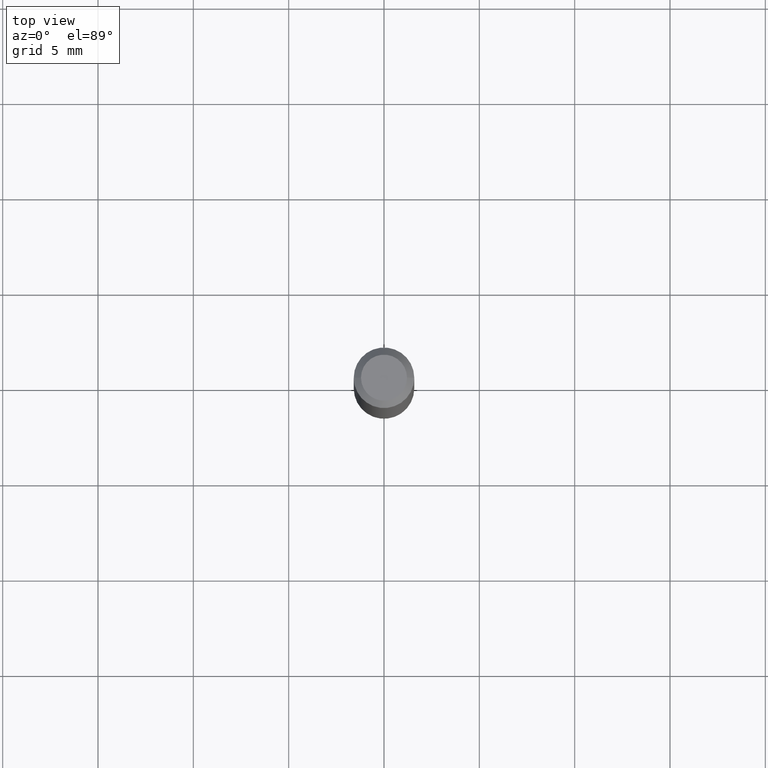
[diagram: clean part render]
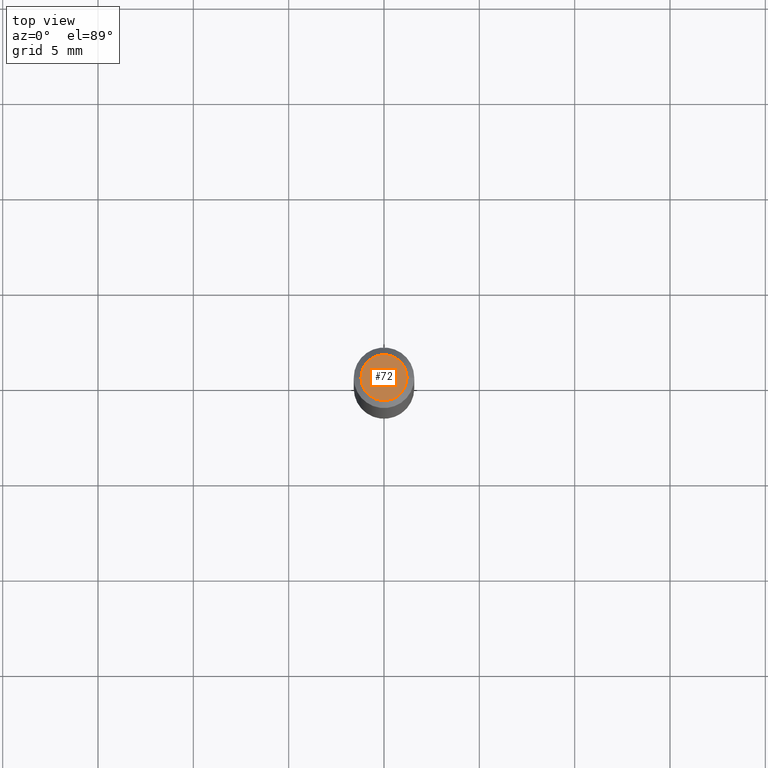
[diagram: same view with one face highlighted and labeled with its STEP entity id]
A machine part, top view. The second image highlights one B-rep face of the part: STEP entity #72.
In plain terms, the highlighted planar face has unit normal (0, -0, -1).
Its self-contained STEP definition (entity closure, byte-faithful):
#37 = EDGE_CURVE ( 'NONE', #315, #357, #295, .T. ) ;
#44 = DIRECTION ( 'NONE',  ( 1.000000000000000000, -6.982962677686267499E-15, 4.852736867747366768E-29 ) ) ;
#56 = ORIENTED_EDGE ( 'NONE', *, *, #328, .T. ) ;
#57 = DIRECTION ( 'NONE',  ( -1.000000000000000000, 6.982962677686265922E-15, -4.876176775795935793E-29 ) ) ;
#64 = ORIENTED_EDGE ( 'NONE', *, *, #37, .T. ) ;
#72 = ADVANCED_FACE ( 'NONE', ( #228 ), #198, .F. ) ;
#139 = AXIS2_PLACEMENT_3D ( 'NONE', #259, #441, #57 ) ;
#188 = CARTESIAN_POINT ( 'NONE',  ( -0.04749999999999999362, 3.578768372314200645E-16, -5.645421759935625219E-16 ) ) ;
#192 = CARTESIAN_POINT ( 'NONE',  ( 1.380570281168130538E-44, -1.971088472471417818E-30, -5.645421759935600567E-16 ) ) ;
#198 = PLANE ( 'NONE',  #139 ) ;
#222 = AXIS2_PLACEMENT_3D ( 'NONE', #399, #369, #44 ) ;
#228 = FACE_OUTER_BOUND ( 'NONE', #344, .T. ) ;
#231 = DIRECTION ( 'NONE',  ( -2.445468806185136597E-29, 3.491481338843145583E-15, 1.000000000000000000 ) ) ;
#256 = CARTESIAN_POINT ( 'NONE',  ( 0.04749999999999999362, -4.035134999187588484E-16, -5.645421759935574929E-16 ) ) ;
#259 = CARTESIAN_POINT ( 'NONE',  ( 3.316907271900976096E-16, 0.04749999999999999362, -4.481164515918294248E-16 ) ) ;
#295 = CIRCLE ( 'NONE', #367, 0.04749999999999999362 ) ;
#315 = VERTEX_POINT ( 'NONE', #188 ) ;
#328 = EDGE_CURVE ( 'NONE', #357, #315, #376, .T. ) ;
#344 = EDGE_LOOP ( 'NONE', ( #64, #56 ) ) ;
#357 = VERTEX_POINT ( 'NONE', #256 ) ;
#367 = AXIS2_PLACEMENT_3D ( 'NONE', #192, #231, #381 ) ;
#369 = DIRECTION ( 'NONE',  ( -2.445468806185136597E-29, 3.491481338843145583E-15, 1.000000000000000000 ) ) ;
#376 = CIRCLE ( 'NONE', #222, 0.04749999999999999362 ) ;
#381 = DIRECTION ( 'NONE',  ( 1.000000000000000000, -6.982962677686267499E-15, 4.852736867747366768E-29 ) ) ;
#399 = CARTESIAN_POINT ( 'NONE',  ( 1.380570281168130538E-44, -1.971088472471417818E-30, -5.645421759935600567E-16 ) ) ;
#441 = DIRECTION ( 'NONE',  ( 2.438088387897960049E-29, -3.491481338843145188E-15, -1.000000000000000000 ) ) ;